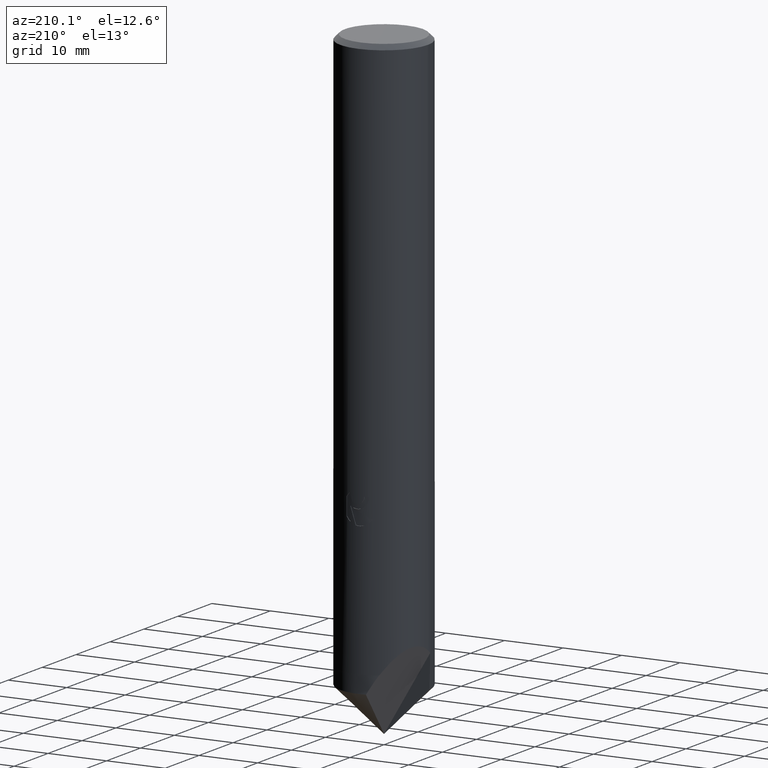
[diagram: clean part render]
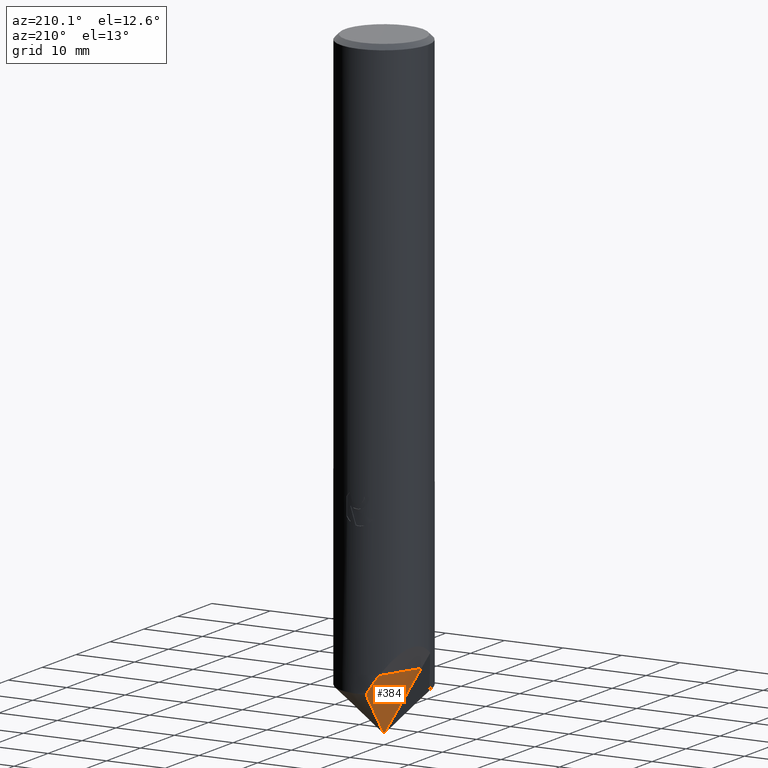
[diagram: same view with one face highlighted and labeled with its STEP entity id]
A machine part, auxiliary view. The second image highlights one B-rep face of the part: STEP entity #384.
In plain terms, the highlighted planar face has unit normal (0.8258, -0.3296, 0.4576).
Its self-contained STEP definition (entity closure, byte-faithful):
#188=EDGE_CURVE('',#440,#220,#498,.T.);
#220=VERTEX_POINT('',#535);
#234=EDGE_CURVE('',#308,#340,#550,.T.);
#252=EDGE_CURVE('',#220,#334,#570,.T.);
#308=VERTEX_POINT('',#633);
#334=VERTEX_POINT('',#660);
#340=VERTEX_POINT('',#666);
#384=ADVANCED_FACE('',(#714),#715,.F.);
#412=EDGE_CURVE('',#308,#334,#744,.T.);
#418=EDGE_CURVE('',#340,#440,#750,.T.);
#440=VERTEX_POINT('',#775);
#498=ELLIPSE('',#832,16.3893911124316,7.5);
#535=CARTESIAN_POINT('',(-3.09755287899955,6.83045870800795,-95.5));
#550=(B_SPLINE_CURVE(2,(#925,#926,#927,#928,#929,#930,#931,#932,#933,#934,#935,#936,#937,#938,#939,#940),.UNSPECIFIED.,.F.,.F.)B_SPLINE_CURVE_WITH_KNOTS((3,1,1,1,1,1,1,1,1,1,1,1,1,1,3),(0.0,0.0144223708020224,0.0383650552041674,0.109236686767453,0.321472929484965,0.95839546790713,2.87554785252626,8.65899897439672,15.3497662064552,18.9677353128931,20.4189957532086,20.9354876959978,21.1115659184421,21.1707155336842,21.1904873287278),.UNSPECIFIED.)RATIONAL_B_SPLINE_CURVE((1.0,1.72808043828925,3.66221623820881,8.43136863833823,22.5760721306656,64.1432492235218,181.416889877826,464.658273462127,579.739726934194,346.208963212438,143.9869464338,51.8827118173493,17.761352510332,5.9748661225281,1.99813389897675,1.0))BOUNDED_CURVE()REPRESENTATION_ITEM('')GEOMETRIC_REPRESENTATION_ITEM()CURVE());
#570=LINE('',#984,#985);
#633=CARTESIAN_POINT('',(-0.0136769298758277,-0.00130710703582332,-105.986260751853));
#660=CARTESIAN_POINT('',(-6.05514261057298,-0.578691239996896,-95.5));
#666=CARTESIAN_POINT('',(-0.0124291816613474,-9.95224077111807E-019,-105.987570818339));
#714=FACE_OUTER_BOUND('',#1368,.T.);
#715=PLANE('',#1369);
#744=LINE('',#1420,#1421);
#750=(B_SPLINE_CURVE(2,(#1431,#1432,#1433,#1434,#1435,#1436,#1437,#1438,#1439,#1440,#1441,#1442,#1443,#1444,#1445,#1446),.UNSPECIFIED.,.F.,.F.)B_SPLINE_CURVE_WITH_KNOTS((3,1,1,1,1,1,1,1,1,1,1,1,1,1,3),(0.0,0.0144223708020224,0.0383650552041674,0.109236686767453,0.321472929484965,0.95839546790713,2.87554785252626,8.65899897439672,15.3497662064552,18.9677353128931,20.4189957532086,20.9354876959978,21.1115659184421,21.1707155336842,21.1904873287278),.UNSPECIFIED.)RATIONAL_B_SPLINE_CURVE((1.0,1.72808043828925,3.66221623820881,8.43136863833823,22.5760721306656,64.1432492235218,181.416889877826,464.658273462127,579.739726934194,346.208963212438,143.9869464338,51.8827118173493,17.761352510332,5.9748661225281,1.99813389897675,1.0))BOUNDED_CURVE()REPRESENTATION_ITEM('')GEOMETRIC_REPRESENTATION_ITEM()CURVE());
#775=CARTESIAN_POINT('',(-1.20684191681012,7.40226536864426,-98.5));
#832=AXIS2_PLACEMENT_3D('',#1591,#1592,#1593);
#925=CARTESIAN_POINT('',(-5.97252677901018,-4.53639988030226,-98.5));
#926=CARTESIAN_POINT('',(-3.45655358293089,-2.62222744267013,-101.661355854108));
#927=CARTESIAN_POINT('',(-1.63152358025443,-1.23372729024417,-103.95452981264));
#928=CARTESIAN_POINT('',(-0.709182676771671,-0.531996583134438,-105.113459570446));
#929=CARTESIAN_POINT('',(-0.265421830619617,-0.194360204232095,-105.671037226243));
#930=CARTESIAN_POINT('',(-0.0939751358279068,-0.0638620682360433,-105.886419108375));
#931=CARTESIAN_POINT('',(-0.0336834823328344,-0.0177993924934998,-105.962037896027));
#932=CARTESIAN_POINT('',(-0.013211137470294,-0.00151306677845839,-105.987249663392));
#933=CARTESIAN_POINT('',(-0.00879553547156075,0.00509863467726246,-105.990455169273));
#934=CARTESIAN_POINT('',(-0.00925151241752999,0.0160760079546242,-105.981724838343));
#935=CARTESIAN_POINT('',(-0.0138538213766586,0.0468022473041019,-105.951286216583));
#936=CARTESIAN_POINT('',(-0.0285806534386828,0.138335126466384,-105.858775555558));
#937=CARTESIAN_POINT('',(-0.0730397793675497,0.412655210484618,-105.580941423444));
#938=CARTESIAN_POINT('',(-0.206471436636044,1.23529638144952,-104.747570925028));
#939=CARTESIAN_POINT('',(-0.606673594218677,3.70243107379331,-102.248195141246));
#940=CARTESIAN_POINT('',(-1.20684191681012,7.40226536864425,-98.5));
#984=CARTESIAN_POINT('',(0.131728917075988,14.9202328900265,-95.5));
#985=VECTOR('',#1676,1.0);
#1368=EDGE_LOOP('',(#1827,#1828,#1829,#1830,#1831));
#1369=AXIS2_PLACEMENT_3D('',#1832,#1833,#1834);
#1420=CARTESIAN_POINT('',(0.0,0.0,-106.01));
#1421=VECTOR('',#1855,1.0);
#1431=CARTESIAN_POINT('',(-5.97252677901018,-4.53639988030226,-98.5));
#1432=CARTESIAN_POINT('',(-3.45655358293089,-2.62222744267013,-101.661355854108));
#1433=CARTESIAN_POINT('',(-1.63152358025443,-1.23372729024417,-103.95452981264));
#1434=CARTESIAN_POINT('',(-0.709182676771671,-0.531996583134438,-105.113459570446));
#1435=CARTESIAN_POINT('',(-0.265421830619617,-0.194360204232095,-105.671037226243));
#1436=CARTESIAN_POINT('',(-0.0939751358279068,-0.0638620682360433,-105.886419108375));
#1437=CARTESIAN_POINT('',(-0.0336834823328344,-0.0177993924934998,-105.962037896027));
#1438=CARTESIAN_POINT('',(-0.013211137470294,-0.00151306677845839,-105.987249663392));
#1439=CARTESIAN_POINT('',(-0.00879553547156075,0.00509863467726246,-105.990455169273));
#1440=CARTESIAN_POINT('',(-0.00925151241752999,0.0160760079546242,-105.981724838343));
#1441=CARTESIAN_POINT('',(-0.0138538213766586,0.0468022473041019,-105.951286216583));
#1442=CARTESIAN_POINT('',(-0.0285806534386828,0.138335126466384,-105.858775555558));
#1443=CARTESIAN_POINT('',(-0.0730397793675497,0.412655210484618,-105.580941423444));
#1444=CARTESIAN_POINT('',(-0.206471436636044,1.23529638144952,-104.747570925028));
#1445=CARTESIAN_POINT('',(-0.606673594218677,3.70243107379331,-102.248195141246));
#1446=CARTESIAN_POINT('',(-1.20684191681012,7.40226536864425,-98.5));
#1591=CARTESIAN_POINT('',(0.0,0.0,-106.01));
#1592=DIRECTION('',(0.825789462960248,-0.329639223559036,0.457613095480474));
#1593=DIRECTION('',(-0.425003055891174,0.169653021306386,0.88915142402449));
#1676=DIRECTION('',(-0.370734629279474,-0.928738840930544,0.0));
#1827=ORIENTED_EDGE('',*,*,#234,.F.);
#1828=ORIENTED_EDGE('',*,*,#412,.T.);
#1829=ORIENTED_EDGE('',*,*,#252,.F.);
#1830=ORIENTED_EDGE('',*,*,#188,.F.);
#1831=ORIENTED_EDGE('',*,*,#418,.F.);
#1832=CARTESIAN_POINT('',(7.90483198734103,28.2871042854214,-99.898260280607));
#1833=DIRECTION('',(0.825789462960248,-0.329639223559036,0.457613095480474));
#1834=DIRECTION('',(0.263494399578035,0.942903476180712,0.203724657313102));
#1855=DIRECTION('',(-0.498640616330876,-0.0476551875216736,0.865497844507679));